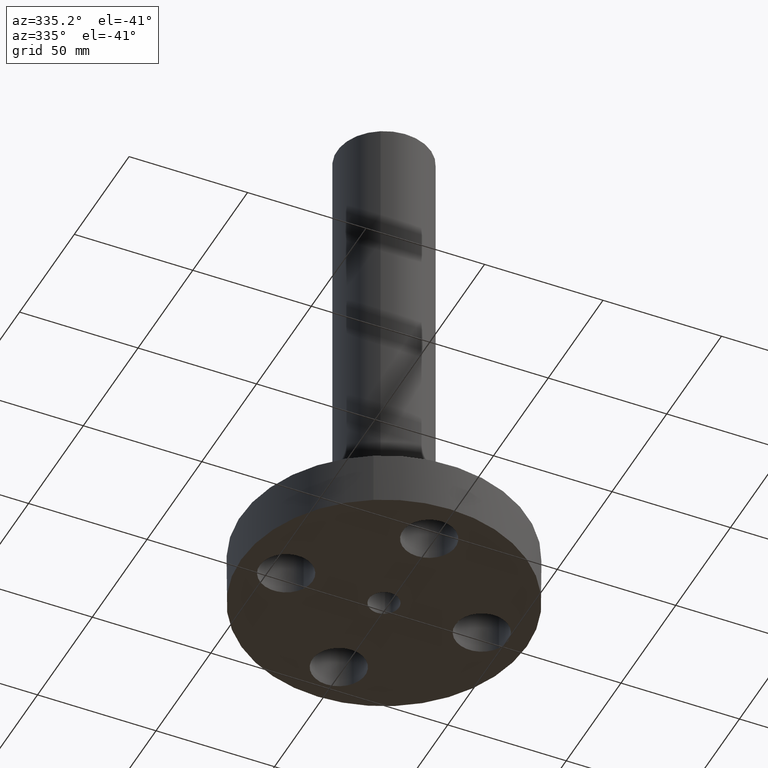
[diagram: clean part render]
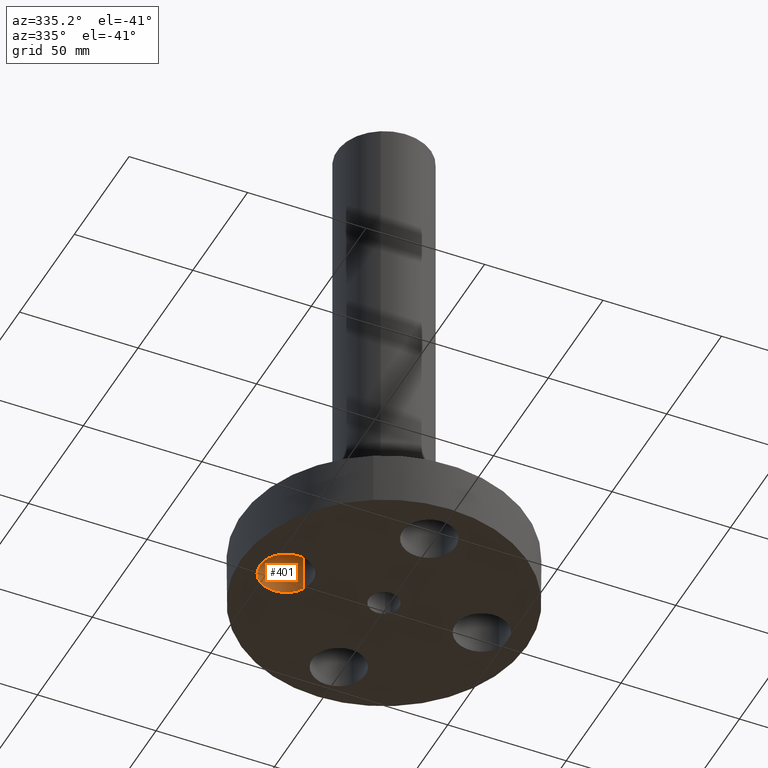
[diagram: same view with one face highlighted and labeled with its STEP entity id]
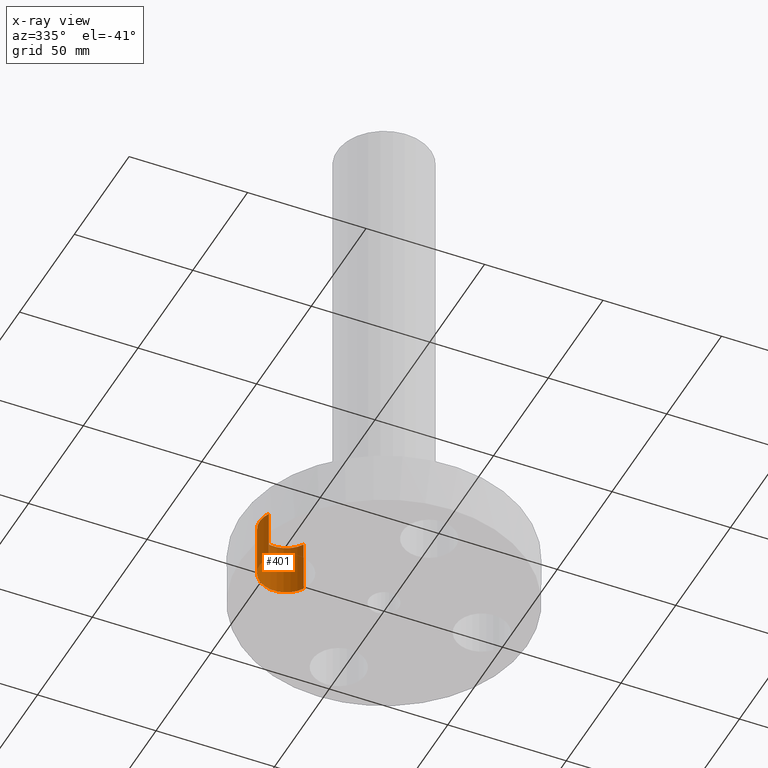
[diagram: x-ray of the same camera — body ghosted, the highlighted face saturated]
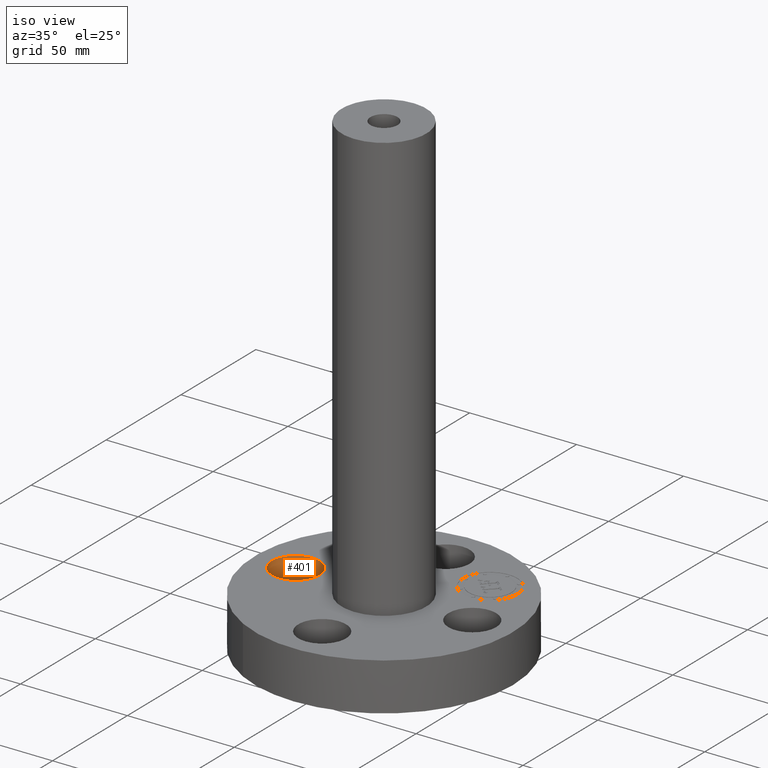
[diagram: same view with one face highlighted and labeled with its STEP entity id]
A machine part, auxiliary view. The second image highlights one B-rep face of the part: STEP entity #401.
The next image is the same camera in x-ray: the body ghosted, the highlighted face saturated — about 2% of this face is hidden behind the body in this view.
A second angle (iso view) of the same face is appended — the face is thin or edge-on in the first view.
In plain terms, the highlighted cylindrical surface (edge-blend (fillet) strip) has radius 11.176 mm, axis along (0, 0, 1).
Its self-contained STEP definition (entity closure, byte-faithful):
#166=AXIS2_PLACEMENT_3D('Circle Axis2P3D',#164,#165,$) ;
#374=AXIS2_PLACEMENT_3D('Cylinder Axis2P3D',#371,#372,#373) ;
#392=AXIS2_PLACEMENT_3D('Circle Axis2P3D',#390,#391,$) ;
#159=CARTESIAN_POINT('Vertex',(-1.23886367277,0.210947236987,0.880000000004)) ;
#161=CARTESIAN_POINT('Vertex',(-2.01113632724,-0.210947236987,0.880000000004)) ;
#164=CARTESIAN_POINT('Axis2P3D Location',(-1.62500000001,0.,0.880000000004)) ;
#371=CARTESIAN_POINT('Axis2P3D Location',(-1.62500000001,-1.99005104862E-016,0.00393700787402)) ;
#376=CARTESIAN_POINT('Line Origine',(-1.23886367277,0.210947236987,0.440000000002)) ;
#380=CARTESIAN_POINT('Vertex',(-1.23886367277,0.210947236987,2.2401153548E-016)) ;
#383=CARTESIAN_POINT('Line Origine',(-2.01113632724,-0.210947236987,0.440000000002)) ;
#387=CARTESIAN_POINT('Vertex',(-2.01113632724,-0.210947236987,2.2401153548E-016)) ;
#390=CARTESIAN_POINT('Axis2P3D Location',(-1.62500000001,-1.99005104862E-016,0.)) ;
#165=DIRECTION('Axis2P3D Direction',(0.,0.,-0.0393700787402)) ;
#372=DIRECTION('Axis2P3D Direction',(0.,0.,0.0393700787402)) ;
#373=DIRECTION('Axis2P3D XDirection',(-0.0345504945626,-0.0188750212049,0.)) ;
#377=DIRECTION('Vector Direction',(0.,0.,0.0393700787402)) ;
#384=DIRECTION('Vector Direction',(0.,0.,0.0393700787402)) ;
#391=DIRECTION('Axis2P3D Direction',(0.,0.,0.0393700787402)) ;
#378=VECTOR('Line Direction',#377,0.0393700787402) ;
#385=VECTOR('Line Direction',#384,0.0393700787402) ;
#396=ORIENTED_EDGE('',*,*,#382,.F.) ;
#397=ORIENTED_EDGE('',*,*,#168,.F.) ;
#398=ORIENTED_EDGE('',*,*,#389,.T.) ;
#399=ORIENTED_EDGE('',*,*,#394,.T.) ;
#401=ADVANCED_FACE('PartBody',(#400),#375,.F.) ;
#167=CIRCLE('generated circle',#166,0.440000000002) ;
#393=CIRCLE('generated circle',#392,0.440000000002) ;
#375=CYLINDRICAL_SURFACE('generated cylinder',#374,0.440000000002) ;
#168=EDGE_CURVE('',#162,#160,#167,.T.) ;
#382=EDGE_CURVE('',#160,#381,#379,.F.) ;
#389=EDGE_CURVE('',#162,#388,#386,.F.) ;
#394=EDGE_CURVE('',#388,#381,#393,.F.) ;
#395=EDGE_LOOP('',(#396,#397,#398,#399)) ;
#400=FACE_OUTER_BOUND('',#395,.T.) ;
#379=LINE('Line',#376,#378) ;
#386=LINE('Line',#383,#385) ;
#160=VERTEX_POINT('',#159) ;
#162=VERTEX_POINT('',#161) ;
#381=VERTEX_POINT('',#380) ;
#388=VERTEX_POINT('',#387) ;